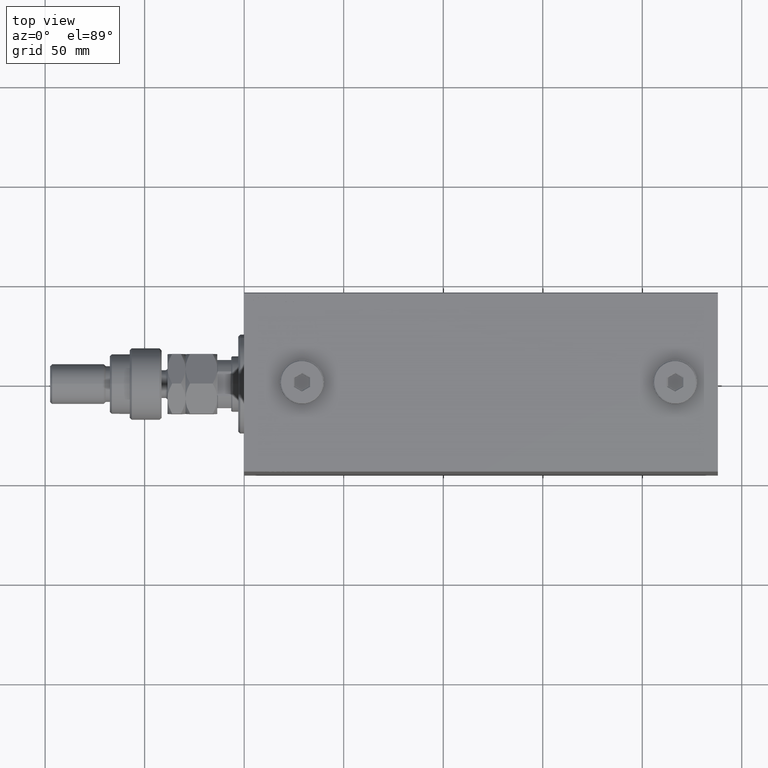
[diagram: clean part render]
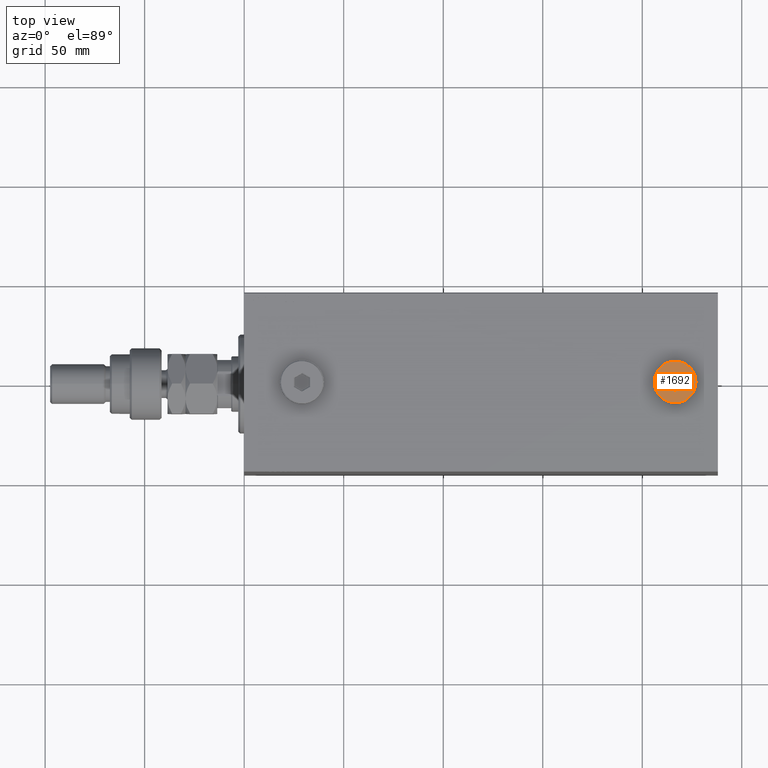
[diagram: same view with one face highlighted and labeled with its STEP entity id]
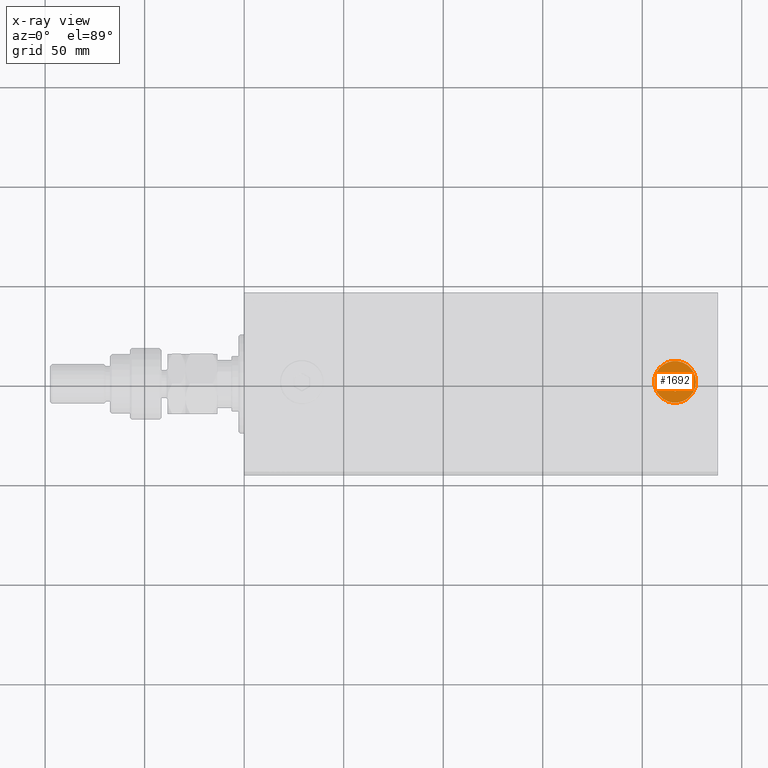
[diagram: x-ray of the same camera — body ghosted, the highlighted face saturated]
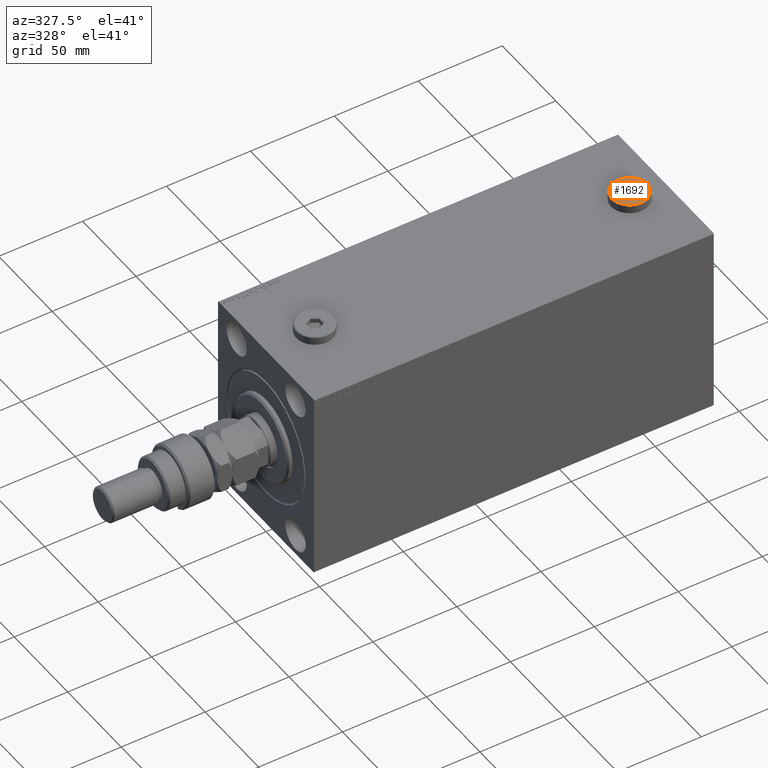
[diagram: same view with one face highlighted and labeled with its STEP entity id]
A machine part, top view. The second image highlights one B-rep face of the part: STEP entity #1692.
The next image is the same camera in x-ray: the body ghosted, the highlighted face saturated — about 0% of this face is hidden behind the body in this view.
A second angle (auxiliary view) of the same face is appended — the face is thin or edge-on in the first view.
In plain terms, the highlighted planar face has unit normal (0, 0, 1).
Its self-contained STEP definition (entity closure, byte-faithful):
#1283 = CARTESIAN_POINT ( 'NONE',  ( -4.166666666666664298, 2.405626121623439584, 5.000000000000000000 ) ) ;
#1624 = LINE ( 'NONE', #8686, #44127 ) ;
#1692 = ADVANCED_FACE ( 'NONE', ( #23294, #8224 ), #5295, .T. ) ;
#2196 = EDGE_CURVE ( 'NONE', #24452, #47211, #16285, .T. ) ;
#2326 = AXIS2_PLACEMENT_3D ( 'NONE', #40506, #29527, #11030 ) ;
#3557 = CARTESIAN_POINT ( 'NONE',  ( -4.166666666666665186, -2.405626121623437363, 5.000000000000000000 ) ) ;
#3740 = EDGE_CURVE ( 'NONE', #6998, #9625, #10569, .T. ) ;
#4234 = CARTESIAN_POINT ( 'NONE',  ( -8.363929151985410416E-16, -4.811252243246877391, 5.000000000000000000 ) ) ;
#5295 = PLANE ( 'NONE',  #37264 ) ;
#6980 = VERTEX_POINT ( 'NONE', #3557 ) ;
#6998 = VERTEX_POINT ( 'NONE', #32532 ) ;
#7522 = LINE ( 'NONE', #44046, #16144 ) ;
#7841 = VECTOR ( 'NONE', #24032, 1000.000000000000000 ) ;
#8224 = FACE_OUTER_BOUND ( 'NONE', #25864, .T. ) ;
#8686 = CARTESIAN_POINT ( 'NONE',  ( -3.916666666666664742, -2.549963688920843907, 5.000000000000000000 ) ) ;
#9196 = CARTESIAN_POINT ( 'NONE',  ( 3.916666666666664742, 2.549963688920845239, 5.000000000000000000 ) ) ;
#9462 = ORIENTED_EDGE ( 'NONE', *, *, #24098, .T. ) ;
#9625 = VERTEX_POINT ( 'NONE', #4234 ) ;
#9891 = LINE ( 'NONE', #24738, #27455 ) ;
#10569 = LINE ( 'NONE', #43699, #36565 ) ;
#11030 = DIRECTION ( 'NONE',  ( 1.000000000000000000, 0.000000000000000000, 0.000000000000000000 ) ) ;
#11077 = VERTEX_POINT ( 'NONE', #37676 ) ;
#11915 = AXIS2_PLACEMENT_3D ( 'NONE', #25395, #14678, #18085 ) ;
#12968 = VECTOR ( 'NONE', #32691, 1000.000000000000000 ) ;
#14423 = VERTEX_POINT ( 'NONE', #17812 ) ;
#14560 = ORIENTED_EDGE ( 'NONE', *, *, #3740, .T. ) ;
#14678 = DIRECTION ( 'NONE',  ( 0.000000000000000000, 0.000000000000000000, 1.000000000000000000 ) ) ;
#16144 = VECTOR ( 'NONE', #22117, 1000.000000000000114 ) ;
#16285 = CIRCLE ( 'NONE', #2326, 10.50000000000000178 ) ;
#17117 = EDGE_LOOP ( 'NONE', ( #46647, #36305, #44975, #9462, #14560, #27528 ) ) ;
#17387 = ORIENTED_EDGE ( 'NONE', *, *, #2196, .T. ) ;
#17812 = CARTESIAN_POINT ( 'NONE',  ( -6.281144585932674641E-17, 4.811252243246876503, 5.000000000000000000 ) ) ;
#18085 = DIRECTION ( 'NONE',  ( 1.000000000000000000, 0.000000000000000000, 0.000000000000000000 ) ) ;
#19170 = DIRECTION ( 'NONE',  ( 1.000000000000000000, 0.000000000000000000, -0.000000000000000000 ) ) ;
#20103 = DIRECTION ( 'NONE',  ( -0.8660254037844384856, 0.5000000000000002220, 0.000000000000000000 ) ) ;
#22117 = DIRECTION ( 'NONE',  ( 0.8660254037844388186, 0.4999999999999997780, 0.000000000000000000 ) ) ;
#23060 = CARTESIAN_POINT ( 'NONE',  ( 0.000000000000000000, 0.000000000000000000, 5.000000000000000000 ) ) ;
#23294 = FACE_BOUND ( 'NONE', #17117, .T. ) ;
#23529 = DIRECTION ( 'NONE',  ( 0.000000000000000000, 0.000000000000000000, 1.000000000000000000 ) ) ;
#24032 = DIRECTION ( 'NONE',  ( 0.8660254037844387076, -0.4999999999999998335, 0.000000000000000000 ) ) ;
#24098 = EDGE_CURVE ( 'NONE', #11077, #6998, #28789, .T. ) ;
#24448 = EDGE_CURVE ( 'NONE', #9625, #6980, #1624, .T. ) ;
#24452 = VERTEX_POINT ( 'NONE', #46185 ) ;
#24738 = CARTESIAN_POINT ( 'NONE',  ( -4.166666666666664298, 2.116950987028627829, 5.000000000000000000 ) ) ;
#25126 = CIRCLE ( 'NONE', #11915, 10.50000000000000178 ) ;
#25226 = CARTESIAN_POINT ( 'NONE',  ( 10.50000000000000178, 1.316495309083404815E-15, 5.000000000000000000 ) ) ;
#25395 = CARTESIAN_POINT ( 'NONE',  ( 0.000000000000000000, 0.000000000000000000, 5.000000000000000000 ) ) ;
#25712 = EDGE_CURVE ( 'NONE', #42398, #14423, #7522, .T. ) ;
#25864 = EDGE_LOOP ( 'NONE', ( #17387, #36104 ) ) ;
#27208 = LINE ( 'NONE', #9196, #7841 ) ;
#27455 = VECTOR ( 'NONE', #39590, 1000.000000000000000 ) ;
#27528 = ORIENTED_EDGE ( 'NONE', *, *, #24448, .T. ) ;
#28789 = LINE ( 'NONE', #43658, #12968 ) ;
#29527 = DIRECTION ( 'NONE',  ( 0.000000000000000000, 0.000000000000000000, 1.000000000000000000 ) ) ;
#32495 = DIRECTION ( 'NONE',  ( -0.8660254037844387076, -0.4999999999999998335, 0.000000000000000000 ) ) ;
#32532 = CARTESIAN_POINT ( 'NONE',  ( 4.166666666666664298, -2.405626121623439584, 5.000000000000000000 ) ) ;
#32691 = DIRECTION ( 'NONE',  ( 1.024305408229881337E-16, -1.000000000000000000, 0.000000000000000000 ) ) ;
#36104 = ORIENTED_EDGE ( 'NONE', *, *, #46254, .T. ) ;
#36305 = ORIENTED_EDGE ( 'NONE', *, *, #25712, .T. ) ;
#36565 = VECTOR ( 'NONE', #32495, 1000.000000000000000 ) ;
#37264 = AXIS2_PLACEMENT_3D ( 'NONE', #23060, #23529, #19170 ) ;
#37676 = CARTESIAN_POINT ( 'NONE',  ( 4.166666666666663410, 2.405626121623439584, 5.000000000000000000 ) ) ;
#39413 = EDGE_CURVE ( 'NONE', #14423, #11077, #27208, .T. ) ;
#39590 = DIRECTION ( 'NONE',  ( 1.024305408229881337E-16, 1.000000000000000000, 0.000000000000000000 ) ) ;
#40506 = CARTESIAN_POINT ( 'NONE',  ( 0.000000000000000000, 0.000000000000000000, 5.000000000000000000 ) ) ;
#42398 = VERTEX_POINT ( 'NONE', #1283 ) ;
#43658 = CARTESIAN_POINT ( 'NONE',  ( 4.166666666666664298, -2.116950987028627384, 5.000000000000000000 ) ) ;
#43699 = CARTESIAN_POINT ( 'NONE',  ( 0.2499999999999981681, -4.666914675949471736, 5.000000000000000000 ) ) ;
#44046 = CARTESIAN_POINT ( 'NONE',  ( -0.2499999999999992506, 4.666914675949470848, 5.000000000000000000 ) ) ;
#44127 = VECTOR ( 'NONE', #20103, 1000.000000000000000 ) ;
#44975 = ORIENTED_EDGE ( 'NONE', *, *, #39413, .T. ) ;
#45886 = EDGE_CURVE ( 'NONE', #6980, #42398, #9891, .T. ) ;
#46185 = CARTESIAN_POINT ( 'NONE',  ( -10.50000000000000178, 0.000000000000000000, 5.000000000000000000 ) ) ;
#46254 = EDGE_CURVE ( 'NONE', #47211, #24452, #25126, .T. ) ;
#46647 = ORIENTED_EDGE ( 'NONE', *, *, #45886, .T. ) ;
#47211 = VERTEX_POINT ( 'NONE', #25226 ) ;